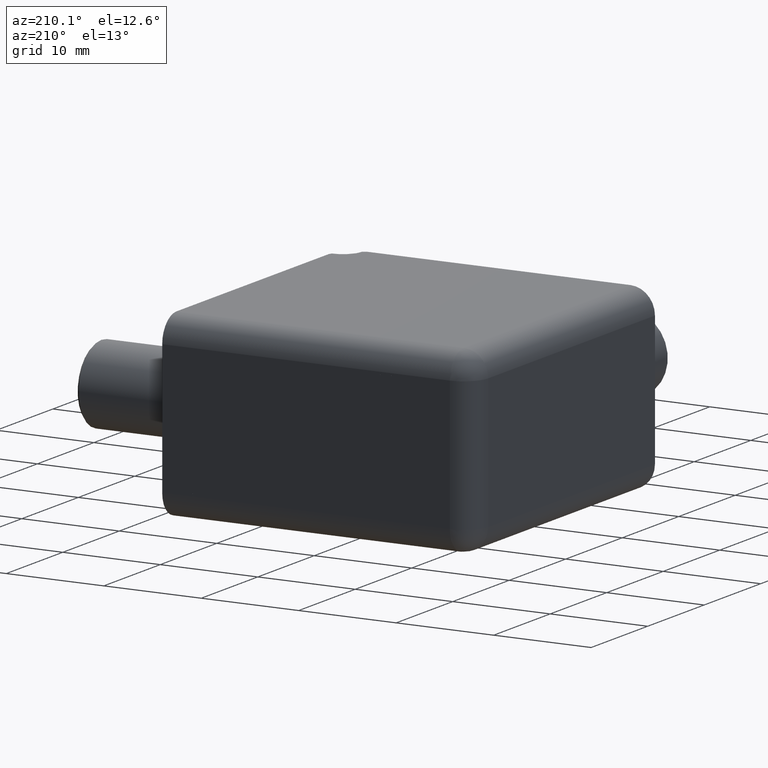
[diagram: clean part render]
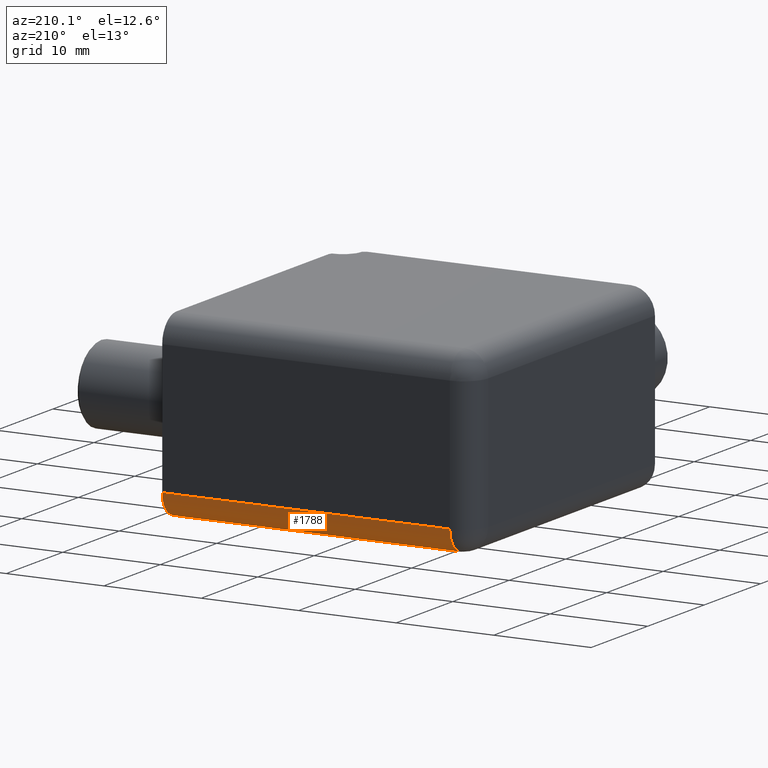
[diagram: same view with one face highlighted and labeled with its STEP entity id]
A machine part, auxiliary view. The second image highlights one B-rep face of the part: STEP entity #1788.
In plain terms, the highlighted cylindrical surface (edge-blend (fillet) strip) has radius 2.5 mm, axis along (1, 0, 0).
Its self-contained STEP definition (entity closure, byte-faithful):
#150=FACE_OUTER_BOUND('',#271,.T.);
#271=EDGE_LOOP('',(#1348,#1349,#1350,#1351));
#390=LINE('',#2779,#564);
#423=LINE('',#2867,#597);
#564=VECTOR('',#2152,1000.);
#597=VECTOR('',#2221,1000.);
#745=CIRCLE('',#1937,2.5);
#761=CIRCLE('',#1964,2.5);
#820=VERTEX_POINT('',#2776);
#821=VERTEX_POINT('',#2778);
#837=VERTEX_POINT('',#2812);
#858=VERTEX_POINT('',#2865);
#992=EDGE_CURVE('',#820,#821,#390,.T.);
#1010=EDGE_CURVE('',#837,#820,#745,.T.);
#1037=EDGE_CURVE('',#858,#837,#423,.T.);
#1061=EDGE_CURVE('',#821,#858,#761,.T.);
#1348=ORIENTED_EDGE('',*,*,#1010,.F.);
#1349=ORIENTED_EDGE('',*,*,#1037,.F.);
#1350=ORIENTED_EDGE('',*,*,#1061,.F.);
#1351=ORIENTED_EDGE('',*,*,#992,.F.);
#1747=CYLINDRICAL_SURFACE('',#1963,2.5);
#1788=ADVANCED_FACE('',(#150),#1747,.T.);
#1937=AXIS2_PLACEMENT_3D('',#2814,#2177,#2178);
#1963=AXIS2_PLACEMENT_3D('',#2911,#2264,#2265);
#1964=AXIS2_PLACEMENT_3D('',#2912,#2266,#2267);
#2152=DIRECTION('',(-1.,0.,0.));
#2177=DIRECTION('center_axis',(1.,0.,0.));
#2178=DIRECTION('ref_axis',(0.,0.,1.));
#2221=DIRECTION('',(1.,0.,0.));
#2264=DIRECTION('center_axis',(1.,0.,0.));
#2265=DIRECTION('ref_axis',(0.,0.,-1.));
#2266=DIRECTION('center_axis',(-1.,0.,0.));
#2267=DIRECTION('ref_axis',(0.,0.,1.));
#2776=CARTESIAN_POINT('',(16.7248569721971,18.052285644955,-6.75));
#2778=CARTESIAN_POINT('',(-12.7751430278029,18.052285644955,-6.75));
#2779=CARTESIAN_POINT('',(-15.2751430278029,18.052285644955,-6.75));
#2812=CARTESIAN_POINT('',(16.7248569721971,15.5522856449551,-9.25));
#2814=CARTESIAN_POINT('Origin',(16.7248569721971,15.5522856449551,-6.75));
#2865=CARTESIAN_POINT('',(-12.7751430278029,15.5522856449551,-9.25));
#2867=CARTESIAN_POINT('',(16.7248569721971,15.5522856449551,-9.25));
#2911=CARTESIAN_POINT('Origin',(-15.2751430278029,15.5522856449551,-6.75));
#2912=CARTESIAN_POINT('Origin',(-12.7751430278029,15.5522856449551,-6.75));